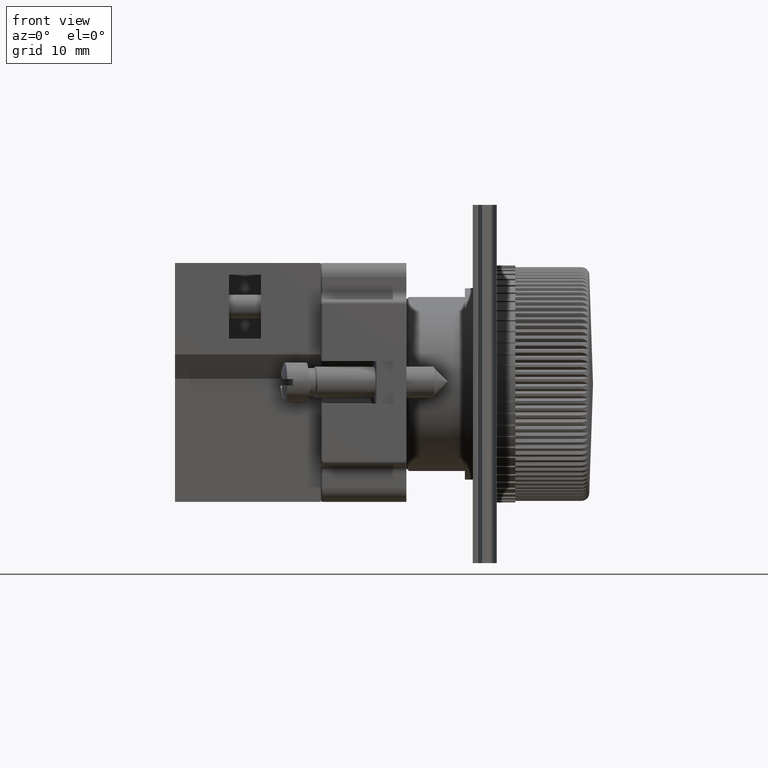
[diagram: clean part render]
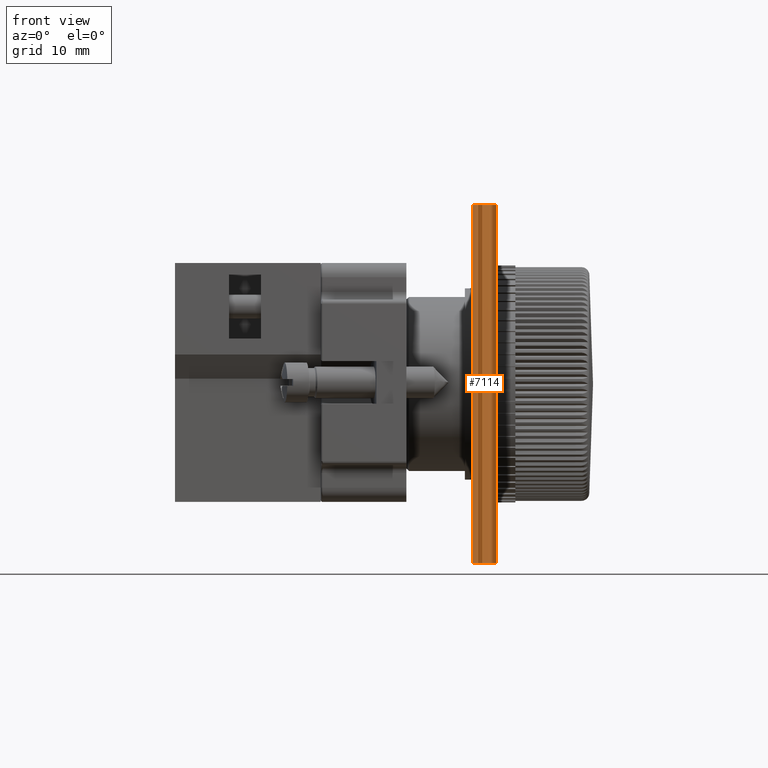
[diagram: same view with one face highlighted and labeled with its STEP entity id]
A machine part, front view. The second image highlights one B-rep face of the part: STEP entity #7114.
In plain terms, the highlighted face is a freeform B-spline surface patch.
Its self-contained STEP definition (entity closure, byte-faithful):
#7045=CARTESIAN_POINT('',(-12.704183619849172,-62.725398273954283,45.0));
#7046=VERTEX_POINT('',#7045);
#7053=CARTESIAN_POINT('',(-12.704183619849172,-62.725398273954283,0.0));
#7054=VERTEX_POINT('',#7053);
#7055=CARTESIAN_POINT('',(-12.704183619849172,-62.725398273954283,0.0));
#7056=DIRECTION('',(0.0,0.0,1.0));
#7057=VECTOR('',#7056,45.0);
#7058=LINE('',#7055,#7057);
#7059=EDGE_CURVE('',#7054,#7046,#7058,.T.);
#7074=CARTESIAN_POINT('',(-15.704183619849182,-62.725398273954283,0.0));
#7075=CARTESIAN_POINT('',(-14.283734517597093,-58.710287807173117,0.0));
#7076=CARTESIAN_POINT('',(-13.047229203726467,-69.825373706267470,0.0));
#7077=CARTESIAN_POINT('',(-14.371498841514271,-57.028426828334801,0.0));
#7078=CARTESIAN_POINT('',(-12.704183619849177,-62.725398273954298,0.0));
#7079=CARTESIAN_POINT('',(-15.704183619849182,-62.725398273954283,45.0));
#7080=CARTESIAN_POINT('',(-14.283734517597093,-58.710287807173117,45.0));
#7081=CARTESIAN_POINT('',(-13.047229203726467,-69.825373706267470,45.0));
#7082=CARTESIAN_POINT('',(-14.371498841514271,-57.028426828334801,45.0));
#7083=CARTESIAN_POINT('',(-12.704183619849177,-62.725398273954298,45.0));
#7084=B_SPLINE_SURFACE_WITH_KNOTS('',4,1,((#7074,#7079),(#7075,#7080),(#7076,#7081),(#7077,#7082),(#7078,#7083)),.UNSPECIFIED.,.F.,.F.,.U.,(5,5),(2,2),(0.0,1.0),(0.0,4.500000000000000),.UNSPECIFIED.);
#7085=CARTESIAN_POINT('',(-15.704183619849179,-62.725398273954283,45.0));
#7086=VERTEX_POINT('',#7085);
#7087=CARTESIAN_POINT('',(-12.704183619849177,-62.725398273954298,45.0));
#7088=CARTESIAN_POINT('',(-14.371498841514271,-57.028426828334801,45.0));
#7089=CARTESIAN_POINT('',(-13.047229203726467,-69.825373706267470,45.0));
#7090=CARTESIAN_POINT('',(-14.283734517597093,-58.710287807173117,45.0));
#7091=CARTESIAN_POINT('',(-15.704183619849182,-62.725398273954283,45.0));
#7092=QUASI_UNIFORM_CURVE('',4,(#7087,#7088,#7089,#7090,#7091),.UNSPECIFIED.,.F.,.U.);
#7093=EDGE_CURVE('',#7046,#7086,#7092,.T.);
#7094=ORIENTED_EDGE('',*,*,#7093,.T.);
#7095=CARTESIAN_POINT('',(-15.704183619849179,-62.725398273954283,0.0));
#7096=VERTEX_POINT('',#7095);
#7097=CARTESIAN_POINT('',(-15.704183619849179,-62.725398273954283,0.0));
#7098=DIRECTION('',(0.0,0.0,1.0));
#7099=VECTOR('',#7098,45.0);
#7100=LINE('',#7097,#7099);
#7101=EDGE_CURVE('',#7096,#7086,#7100,.T.);
#7102=ORIENTED_EDGE('',*,*,#7101,.F.);
#7103=CARTESIAN_POINT('',(-15.704183619849182,-62.725398273954283,0.0));
#7104=CARTESIAN_POINT('',(-14.283734517597093,-58.710287807173117,0.0));
#7105=CARTESIAN_POINT('',(-13.047229203726467,-69.825373706267470,0.0));
#7106=CARTESIAN_POINT('',(-14.371498841514271,-57.028426828334801,0.0));
#7107=CARTESIAN_POINT('',(-12.704183619849177,-62.725398273954298,0.0));
#7108=QUASI_UNIFORM_CURVE('',4,(#7103,#7104,#7105,#7106,#7107),.UNSPECIFIED.,.F.,.U.);
#7109=EDGE_CURVE('',#7096,#7054,#7108,.T.);
#7110=ORIENTED_EDGE('',*,*,#7109,.T.);
#7111=ORIENTED_EDGE('',*,*,#7059,.T.);
#7112=EDGE_LOOP('',(#7094,#7102,#7110,#7111));
#7113=FACE_OUTER_BOUND('',#7112,.T.);
#7114=ADVANCED_FACE('',(#7113),#7084,.T.);